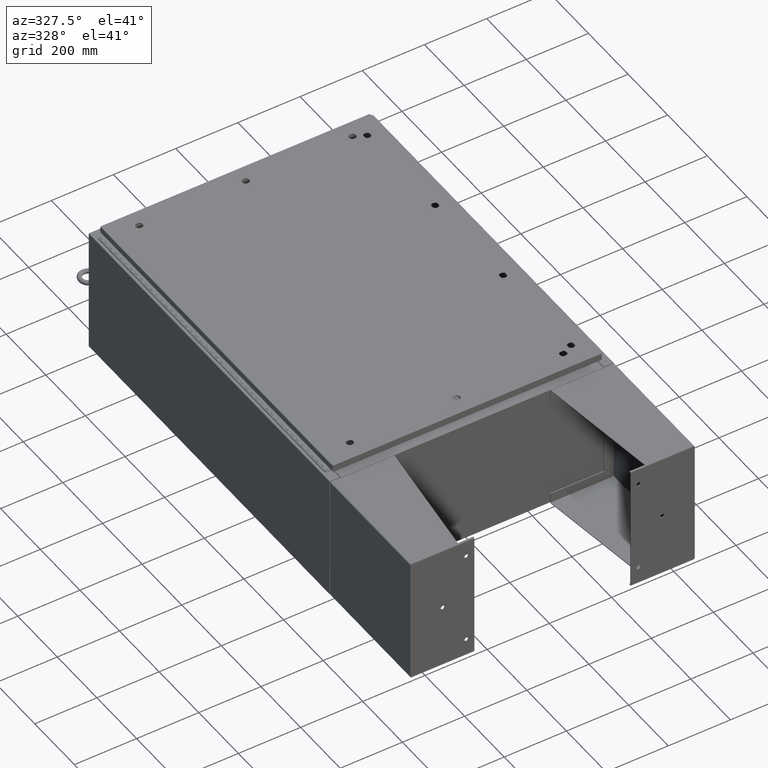
[diagram: clean part render]
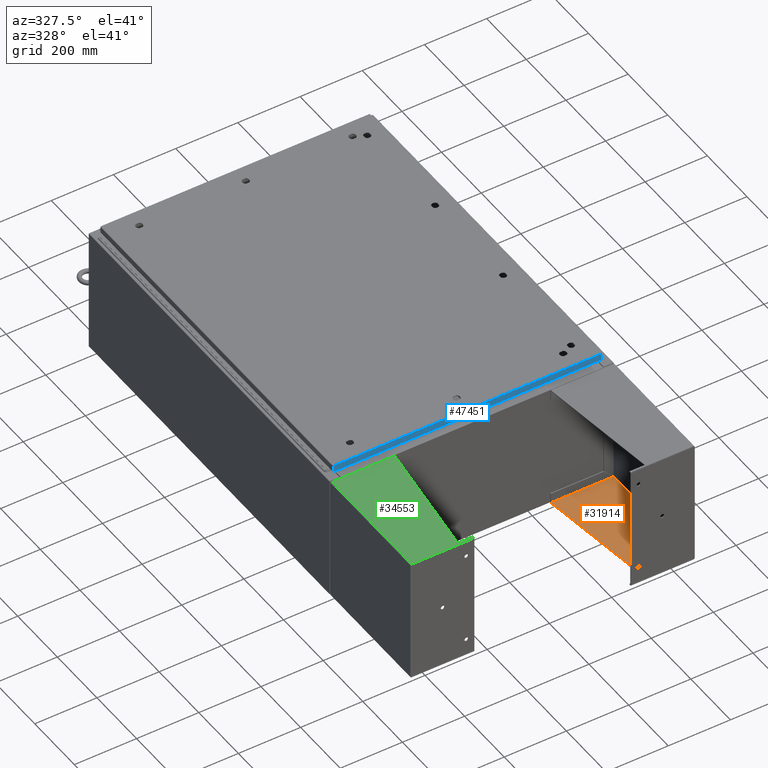
[diagram: same view with three faces highlighted in distinct colors, each labeled with its STEP entity id]
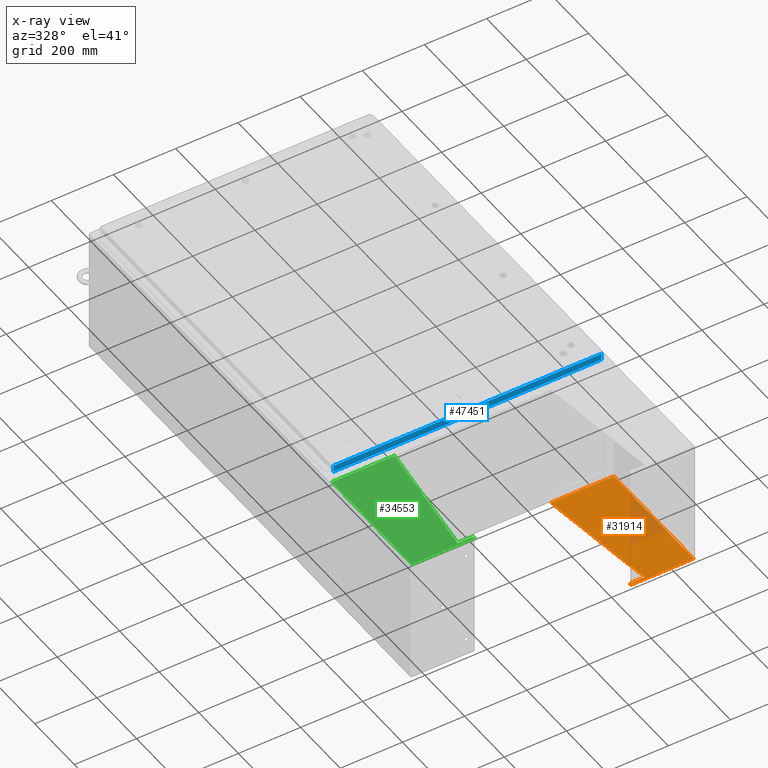
[diagram: x-ray of the same camera — body ghosted, the three highlighted faces saturated]
A machine part, auxiliary view with three faces highlighted in distinct colors.
The next image is the same camera in x-ray (body ghosted, the three faces saturated) — at least one of them is partly hidden behind the body in this view.
Their STEP definitions:

[orange] entity #31914 — the highlighted planar face has unit normal (-0, 0, 1).
#504 = LINE ( 'NONE', #51198, #41597 ) ;
#724 = ORIENTED_EDGE ( 'NONE', *, *, #4704, .F. ) ;
#920 = FACE_OUTER_BOUND ( 'NONE', #16693, .T. ) ;
#2385 = EDGE_CURVE ( 'NONE', #46690, #23485, #34616, .T. ) ;
#2915 = CARTESIAN_POINT ( 'NONE',  ( -7.896000000000027400, -7.999999999999999100, 8.000999999999999400 ) ) ;
#4704 = EDGE_CURVE ( 'NONE', #8602, #46690, #504, .T. ) ;
#6082 = VECTOR ( 'NONE', #27549, 39.37007874015748100 ) ;
#7919 = DIRECTION ( 'NONE',  ( -3.550958521948298200E-015, -0.0000000000000000000, 1.000000000000000000 ) ) ;
#8602 = VERTEX_POINT ( 'NONE', #49076 ) ;
#8763 = EDGE_CURVE ( 'NONE', #46450, #48999, #23183, .T. ) ;
#9477 = DIRECTION ( 'NONE',  ( 0.0000000000000000000, -1.000000000000000000, 0.0000000000000000000 ) ) ;
#10147 = ORIENTED_EDGE ( 'NONE', *, *, #52068, .F. ) ;
#11018 = CARTESIAN_POINT ( 'NONE',  ( -7.896000000000027400, -7.749999999999999100, 8.001000000000006600 ) ) ;
#11823 = VERTEX_POINT ( 'NONE', #27134 ) ;
#13425 = EDGE_CURVE ( 'NONE', #48999, #11823, #22701, .T. ) ;
#13973 = ORIENTED_EDGE ( 'NONE', *, *, #2385, .F. ) ;
#14206 = PLANE ( 'NONE',  #40933 ) ;
#15242 = VECTOR ( 'NONE', #42010, 39.37007874015748100 ) ;
#15744 = CARTESIAN_POINT ( 'NONE',  ( -7.896000000000013200, 7.857000000000001100, 8.000999999999999400 ) ) ;
#16693 = EDGE_LOOP ( 'NONE', ( #724, #10147, #43456, #43953, #49773, #13973 ) ) ;
#16992 = LINE ( 'NONE', #11018, #6082 ) ;
#17626 = EDGE_CURVE ( 'NONE', #23485, #46450, #33432, .T. ) ;
#18344 = CARTESIAN_POINT ( 'NONE',  ( -7.896000000000027400, 8.000000000000001800, 8.000999999999999400 ) ) ;
#19350 = CARTESIAN_POINT ( 'NONE',  ( -7.896000000000027400, 8.000000000000001800, 8.000999999999999400 ) ) ;
#19688 = DIRECTION ( 'NONE',  ( -0.0000000000000000000, 1.000000000000000000, -0.0000000000000000000 ) ) ;
#22457 = DIRECTION ( 'NONE',  ( 3.550958521948298200E-015, 0.0000000000000000000, -1.000000000000000000 ) ) ;
#22701 = LINE ( 'NONE', #19350, #23108 ) ;
#23108 = VECTOR ( 'NONE', #19688, 39.37007874015748100 ) ;
#23183 = LINE ( 'NONE', #33492, #34174 ) ;
#23485 = VERTEX_POINT ( 'NONE', #38382 ) ;
#27134 = CARTESIAN_POINT ( 'NONE',  ( -7.896000000000027400, -7.749999999999999100, 8.001000000000006600 ) ) ;
#27549 = DIRECTION ( 'NONE',  ( 3.550958521948298200E-015, 0.0000000000000000000, -1.000000000000000000 ) ) ;
#29022 = CARTESIAN_POINT ( 'NONE',  ( -7.896000000000013200, 7.857000000000001100, 8.000999999999999400 ) ) ;
#31914 = ADVANCED_FACE ( 'NONE', ( #920 ), #14206, .T. ) ;
#33432 = LINE ( 'NONE', #38757, #47101 ) ;
#33492 = CARTESIAN_POINT ( 'NONE',  ( -7.896000000000027400, -7.999999999999999100, 8.000999999999999400 ) ) ;
#34174 = VECTOR ( 'NONE', #7919, 39.37007874015748100 ) ;
#34616 = LINE ( 'NONE', #29022, #15242 ) ;
#36364 = DIRECTION ( 'NONE',  ( -4.399772607369800400E-016, 0.9922942345449394800, 0.1239038017531047900 ) ) ;
#38382 = CARTESIAN_POINT ( 'NONE',  ( -7.895999999999998100, 7.857000000000002000, 0.03900000000000031900 ) ) ;
#38757 = CARTESIAN_POINT ( 'NONE',  ( -7.895999999999999000, 8.000000000000001800, 0.03900000000000031900 ) ) ;
#40933 = AXIS2_PLACEMENT_3D ( 'NONE', #18344, #47257, #22457 ) ;
#41597 = VECTOR ( 'NONE', #36364, 39.37007874015748100 ) ;
#42010 = DIRECTION ( 'NONE',  ( 0.0000000000000000000, 0.0000000000000000000, -1.000000000000000000 ) ) ;
#43456 = ORIENTED_EDGE ( 'NONE', *, *, #13425, .F. ) ;
#43953 = ORIENTED_EDGE ( 'NONE', *, *, #8763, .F. ) ;
#46450 = VERTEX_POINT ( 'NONE', #51026 ) ;
#46690 = VERTEX_POINT ( 'NONE', #15744 ) ;
#47101 = VECTOR ( 'NONE', #9477, 39.37007874015748100 ) ;
#47257 = DIRECTION ( 'NONE',  ( 1.000000000000000000, 0.0000000000000000000, 3.550958521948298200E-015 ) ) ;
#48999 = VERTEX_POINT ( 'NONE', #2915 ) ;
#49076 = CARTESIAN_POINT ( 'NONE',  ( -7.896000000000019400, -7.749999999999999100, 6.052216497445928500 ) ) ;
#49773 = ORIENTED_EDGE ( 'NONE', *, *, #17626, .F. ) ;
#51026 = CARTESIAN_POINT ( 'NONE',  ( -7.895999999999998100, -7.999999999999999100, 0.03899999999999813300 ) ) ;
#51198 = CARTESIAN_POINT ( 'NONE',  ( -7.896000000000019400, -7.749999999999999100, 6.052216497445928500 ) ) ;
#52068 = EDGE_CURVE ( 'NONE', #11823, #8602, #16992, .T. ) ;

[blue] entity #47451 — the highlighted planar face has unit normal (-0, 1, -0).
#337 = ORIENTED_EDGE ( 'NONE', *, *, #35384, .T. ) ;
#809 = DIRECTION ( 'NONE',  ( -6.481495528880676900E-031, 1.000000000000000000, -5.064839849203732200E-015 ) ) ;
#958 = LINE ( 'NONE', #24097, #21444 ) ;
#974 = LINE ( 'NONE', #49941, #24547 ) ;
#1323 = VERTEX_POINT ( 'NONE', #27457 ) ;
#1935 = DIRECTION ( 'NONE',  ( 1.000000000000000000, 6.481495528880677800E-031, -3.349804276043092000E-045 ) ) ;
#3711 = EDGE_CURVE ( 'NONE', #43500, #24504, #974, .T. ) ;
#9090 = CARTESIAN_POINT ( 'NONE',  ( -16.98915786437626700, -23.09400000000000500, -0.9376999999999954300 ) ) ;
#9311 = LINE ( 'NONE', #17830, #46457 ) ;
#10130 = FACE_OUTER_BOUND ( 'NONE', #22684, .T. ) ;
#10663 = CARTESIAN_POINT ( 'NONE',  ( 16.98915786437626700, -23.09400000000000500, -0.9376999999999997600 ) ) ;
#11062 = CARTESIAN_POINT ( 'NONE',  ( -16.98915786437627100, -23.09400000000000100, 1.172282251335225800E-013 ) ) ;
#11187 = EDGE_CURVE ( 'NONE', #1323, #50458, #9311, .T. ) ;
#17830 = CARTESIAN_POINT ( 'NONE',  ( 17.07799999999999900, -23.09400000000000100, -0.08769999999999550400 ) ) ;
#18699 = VECTOR ( 'NONE', #35779, 39.37007874015748100 ) ;
#20169 = ORIENTED_EDGE ( 'NONE', *, *, #24864, .F. ) ;
#20583 = ORIENTED_EDGE ( 'NONE', *, *, #3711, .F. ) ;
#21444 = VECTOR ( 'NONE', #34880, 39.37007874015748100 ) ;
#22684 = EDGE_LOOP ( 'NONE', ( #24216, #337, #20583, #20169 ) ) ;
#24097 = CARTESIAN_POINT ( 'NONE',  ( 16.98915786437626700, -23.09400000000000100, -0.07469999999999962800 ) ) ;
#24216 = ORIENTED_EDGE ( 'NONE', *, *, #11187, .F. ) ;
#24504 = VERTEX_POINT ( 'NONE', #9090 ) ;
#24547 = VECTOR ( 'NONE', #47083, 39.37007874015748100 ) ;
#24864 = EDGE_CURVE ( 'NONE', #50458, #43500, #958, .T. ) ;
#25356 = CARTESIAN_POINT ( 'NONE',  ( 1.496836577439703600E-029, -23.09400000000000100, 1.172282251335225800E-013 ) ) ;
#27457 = CARTESIAN_POINT ( 'NONE',  ( -16.98915786437626700, -23.09400000000000100, -0.08769999999999550400 ) ) ;
#28997 = CARTESIAN_POINT ( 'NONE',  ( 16.98915786437626700, -23.09400000000000100, -0.08769999999999550400 ) ) ;
#29571 = DIRECTION ( 'NONE',  ( 0.0000000000000000000, 5.064839849203732200E-015, 1.000000000000000000 ) ) ;
#34880 = DIRECTION ( 'NONE',  ( -0.0000000000000000000, -5.064839849203732200E-015, -1.000000000000000000 ) ) ;
#35384 = EDGE_CURVE ( 'NONE', #1323, #24504, #39417, .T. ) ;
#35779 = DIRECTION ( 'NONE',  ( 0.0000000000000000000, -5.064839849203732200E-015, -1.000000000000000000 ) ) ;
#38725 = AXIS2_PLACEMENT_3D ( 'NONE', #25356, #809, #29571 ) ;
#39417 = LINE ( 'NONE', #11062, #18699 ) ;
#43500 = VERTEX_POINT ( 'NONE', #10663 ) ;
#46018 = PLANE ( 'NONE',  #38725 ) ;
#46457 = VECTOR ( 'NONE', #1935, 39.37007874015748100 ) ;
#47083 = DIRECTION ( 'NONE',  ( -1.000000000000000000, 8.758115402030108600E-047, 1.279703943630056800E-016 ) ) ;
#47451 = ADVANCED_FACE ( 'NONE', ( #10130 ), #46018, .F. ) ;
#49941 = CARTESIAN_POINT ( 'NONE',  ( 17.07799999999999900, -23.09400000000000500, -0.9376999999999997600 ) ) ;
#50458 = VERTEX_POINT ( 'NONE', #28997 ) ;

[green] entity #34553 — the highlighted planar face has unit normal (0, 0, -1).
#1995 = LINE ( 'NONE', #32430, #50338 ) ;
#2773 = VECTOR ( 'NONE', #52233, 39.37007874015748100 ) ;
#2926 = DIRECTION ( 'NONE',  ( 0.0000000000000000000, 0.0000000000000000000, -1.000000000000000000 ) ) ;
#4295 = VECTOR ( 'NONE', #4375, 39.37007874015748100 ) ;
#4375 = DIRECTION ( 'NONE',  ( -4.399772607369800400E-016, 0.9922942345449394800, 0.1239038017531047900 ) ) ;
#5338 = VERTEX_POINT ( 'NONE', #30991 ) ;
#5734 = CARTESIAN_POINT ( 'NONE',  ( -8.000000000000026600, 8.000000000000001800, 8.000999999999997700 ) ) ;
#5815 = EDGE_LOOP ( 'NONE', ( #18894, #35206, #10908, #16287, #25152, #47847 ) ) ;
#9837 = DIRECTION ( 'NONE',  ( 3.550958521948298200E-015, 0.0000000000000000000, -1.000000000000000000 ) ) ;
#10683 = VERTEX_POINT ( 'NONE', #13206 ) ;
#10908 = ORIENTED_EDGE ( 'NONE', *, *, #32558, .T. ) ;
#13166 = CARTESIAN_POINT ( 'NONE',  ( -8.000000000000019500, -7.749999999999999100, 6.052216497445926700 ) ) ;
#13206 = CARTESIAN_POINT ( 'NONE',  ( -8.000000000000019500, -7.750000000000000000, 6.052216497445926700 ) ) ;
#14947 = LINE ( 'NONE', #50383, #2773 ) ;
#15273 = VECTOR ( 'NONE', #36762, 39.37007874015748100 ) ;
#15725 = EDGE_CURVE ( 'NONE', #43756, #38823, #1995, .T. ) ;
#16287 = ORIENTED_EDGE ( 'NONE', *, *, #49145, .F. ) ;
#17274 = FACE_OUTER_BOUND ( 'NONE', #5815, .T. ) ;
#17494 = VERTEX_POINT ( 'NONE', #52718 ) ;
#17649 = DIRECTION ( 'NONE',  ( -3.550958521948298200E-015, 0.0000000000000000000, 1.000000000000000000 ) ) ;
#18894 = ORIENTED_EDGE ( 'NONE', *, *, #26671, .T. ) ;
#20696 = VECTOR ( 'NONE', #2926, 39.37007874015748100 ) ;
#22079 = PLANE ( 'NONE',  #26400 ) ;
#22983 = EDGE_CURVE ( 'NONE', #10683, #5338, #26165, .T. ) ;
#23143 = DIRECTION ( 'NONE',  ( 0.0000000000000000000, 1.000000000000000000, 0.0000000000000000000 ) ) ;
#24465 = LINE ( 'NONE', #38432, #42710 ) ;
#25152 = ORIENTED_EDGE ( 'NONE', *, *, #47545, .T. ) ;
#26165 = LINE ( 'NONE', #13166, #4295 ) ;
#26400 = AXIS2_PLACEMENT_3D ( 'NONE', #5734, #34552, #9837 ) ;
#26671 = EDGE_CURVE ( 'NONE', #38823, #10683, #14947, .T. ) ;
#30991 = CARTESIAN_POINT ( 'NONE',  ( -8.000000000000026600, 7.857000000000001100, 8.000999999999997700 ) ) ;
#32430 = CARTESIAN_POINT ( 'NONE',  ( -8.000000000000026600, 8.000000000000001800, 8.000999999999997700 ) ) ;
#32558 = EDGE_CURVE ( 'NONE', #5338, #17494, #42846, .T. ) ;
#34552 = DIRECTION ( 'NONE',  ( 1.000000000000000000, 0.0000000000000000000, 3.550958521948298200E-015 ) ) ;
#34553 = ADVANCED_FACE ( 'NONE', ( #17274 ), #22079, .F. ) ;
#34848 = VERTEX_POINT ( 'NONE', #48979 ) ;
#35206 = ORIENTED_EDGE ( 'NONE', *, *, #22983, .T. ) ;
#35492 = CARTESIAN_POINT ( 'NONE',  ( -8.000000000000026600, -7.750000000000000000, 8.001000000000006600 ) ) ;
#36762 = DIRECTION ( 'NONE',  ( 0.0000000000000000000, 1.000000000000000000, 0.0000000000000000000 ) ) ;
#38432 = CARTESIAN_POINT ( 'NONE',  ( -8.000000000000026600, -7.999999999999999100, 8.000999999999997700 ) ) ;
#38823 = VERTEX_POINT ( 'NONE', #35492 ) ;
#40805 = CARTESIAN_POINT ( 'NONE',  ( -7.999999999999999100, 8.000000000000001800, 0.03899999999999923000 ) ) ;
#42710 = VECTOR ( 'NONE', #17649, 39.37007874015748100 ) ;
#42846 = LINE ( 'NONE', #52333, #20696 ) ;
#43756 = VERTEX_POINT ( 'NONE', #53392 ) ;
#47545 = EDGE_CURVE ( 'NONE', #34848, #43756, #24465, .T. ) ;
#47847 = ORIENTED_EDGE ( 'NONE', *, *, #15725, .T. ) ;
#48243 = LINE ( 'NONE', #40805, #15273 ) ;
#48979 = CARTESIAN_POINT ( 'NONE',  ( -7.999999999999999100, -7.999999999999999100, 0.03899999999999813300 ) ) ;
#49145 = EDGE_CURVE ( 'NONE', #34848, #17494, #48243, .T. ) ;
#50338 = VECTOR ( 'NONE', #23143, 39.37007874015748100 ) ;
#50383 = CARTESIAN_POINT ( 'NONE',  ( -8.000000000000026600, -7.750000000000000000, 8.000999999999997700 ) ) ;
#52233 = DIRECTION ( 'NONE',  ( 3.550958521948298200E-015, 0.0000000000000000000, -1.000000000000000000 ) ) ;
#52333 = CARTESIAN_POINT ( 'NONE',  ( -8.000000000000012400, 7.857000000000001100, 8.000999999999997700 ) ) ;
#52718 = CARTESIAN_POINT ( 'NONE',  ( -8.000000000000012400, 7.857000000000001100, 0.03900000000000469100 ) ) ;
#53392 = CARTESIAN_POINT ( 'NONE',  ( -8.000000000000026600, -7.999999999999999100, 8.000999999999997700 ) ) ;